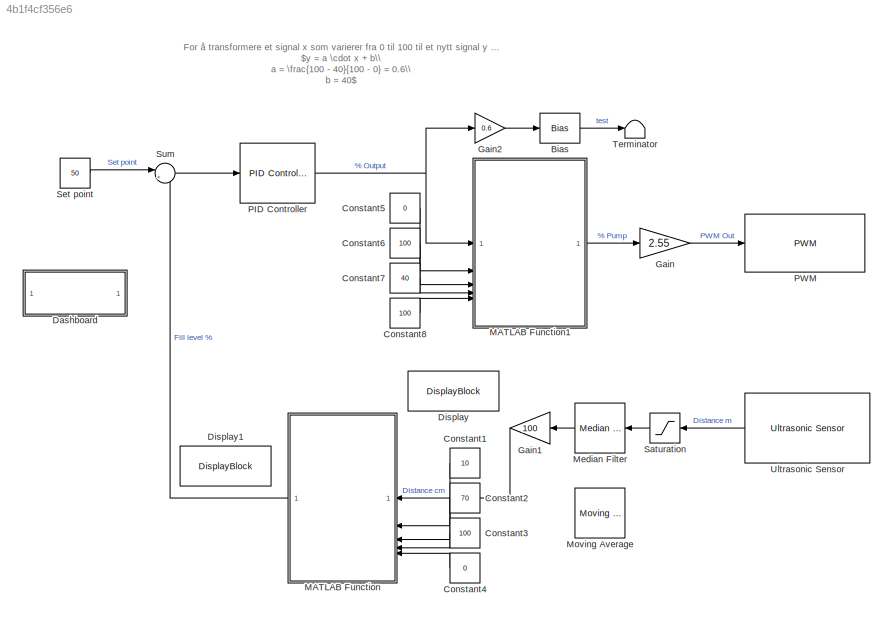
MODEL slx_4b1f4cf356e6
KIND model
CONFIG AbsTol = auto
CONFIG EnableMultiTasking = on
CONFIG FixedStep = auto
CONFIG MaxStep = auto
CONFIG MinStep = auto
CONFIG RelTol = 1e-3
CONFIG SampleTimeConstraint = Unconstrained
CONFIG SolverName = FixedStepAuto
CONFIG StartTime = 0.0
CONFIG StopTime = inf
BLOCK [Bias] Bias
  Bias = 40
  SaturateOnIntegerOverflow = off
BLOCK [Constant] Constant1
  Value = 10
BLOCK [Constant] Constant2
  Value = 70
BLOCK [Constant] Constant3
  Value = 100
BLOCK [Constant] Constant4
  Value = 0
BLOCK [Constant] Constant5
  Value = 0
BLOCK [Constant] Constant6
  Value = 100
BLOCK [Constant] Constant7
  Value = 40
BLOCK [Constant] Constant8
  Value = 100
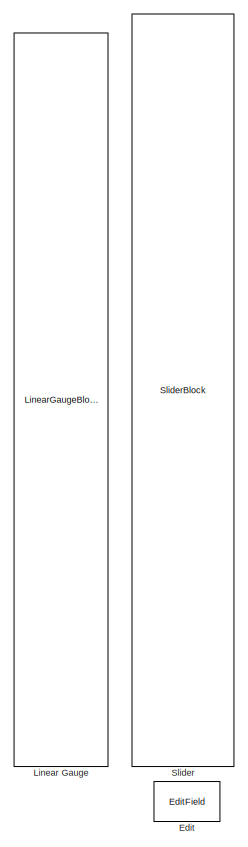
[diagram: Dashboard - part 1/2, right side, full height]
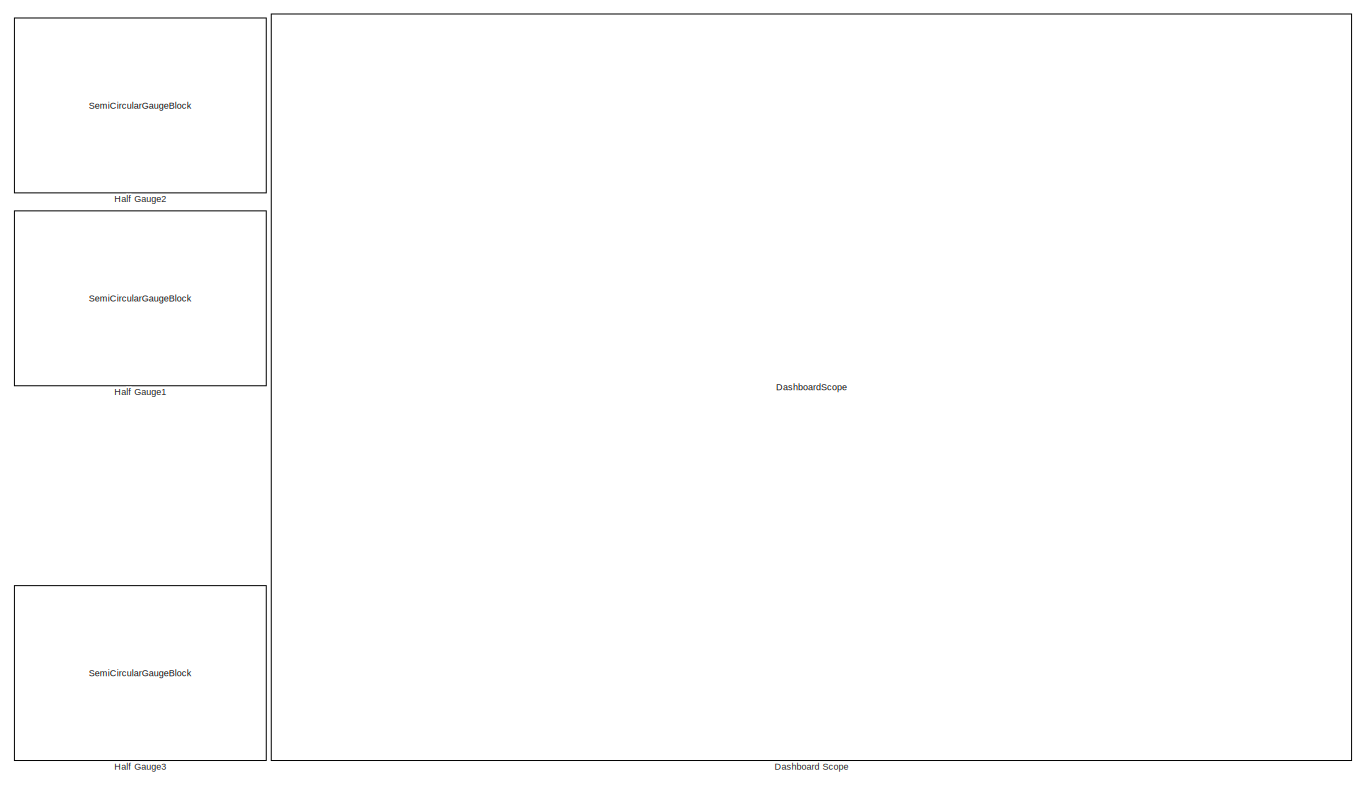
[diagram: Dashboard - part 2/2, most of the canvas]
BLOCK [SubSystem] Dashboard
BLOCK [DashboardScope] Dashboard/Dashboard Scope
  ScaleAtStop = off
  TimeSpan = 60
  UpdateMode = Scroll
  Ymax = 101
  Ymin = 0
BLOCK [EditField] Dashboard/Edit
  Alignment = Center
  LabelPosition = Hide
  ShowInitialText = on
BLOCK [SemiCircularGaugeBlock] Dashboard/Half Gauge1
BLOCK [SemiCircularGaugeBlock] Dashboard/Half Gauge2
BLOCK [SemiCircularGaugeBlock] Dashboard/Half Gauge3
BLOCK [LinearGaugeBlock] Dashboard/Linear Gauge
  NameLocation = right
  TickInterval = 5
BLOCK [SliderBlock] Dashboard/Slider
  NameLocation = left
  TickInterval = 5
BLOCK [DisplayBlock] Display
  FormatString = %d cm
  GridColor = [0.502, 0.502, 0.502]
  Transparency = 1
BLOCK [DisplayBlock] Display1
  FormatString = %d cm
  GridColor = [0.502, 0.502, 0.502]
  Transparency = 1
BLOCK [Gain] Gain
  Gain = 2.55
  RndMeth = Round
BLOCK [Gain] Gain1
  Gain = 100
  RndMeth = Round
BLOCK [Gain] Gain2
  Gain = 0.6
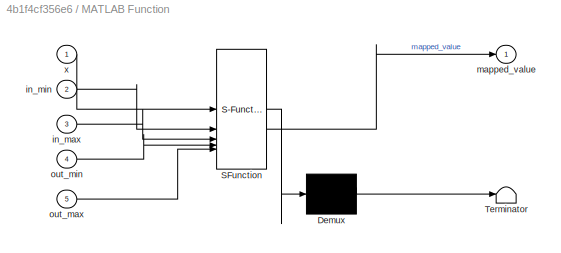
BLOCK [SubSystem] MATLAB Function
  ErrorFcn = Stateflow.Translate.translate
  PermitHierarchicalResolution = ExplicitOnly
  SFBlockType = MATLAB Function
  TreatAsAtomicUnit = on
BLOCK [Demux] MATLAB Function/ Demux 
  Outputs = 1
BLOCK [S-Function] MATLAB Function/ SFunction 
  EnableBusSupport = off
  FunctionName = sf_sfun
  PortCounts = [5 2]
  SFcnIsStateOwnerBlock = off
  SFunctionDeploymentMode = off
  Tag = Stateflow S-Function 2
BLOCK [Terminator] MATLAB Function/ Terminator 
BLOCK [Inport] MATLAB Function/in_max
  Port = 3
BLOCK [Inport] MATLAB Function/in_min
  Port = 2
BLOCK [Outport] MATLAB Function/mapped_value
BLOCK [Inport] MATLAB Function/out_max
  Port = 5
BLOCK [Inport] MATLAB Function/out_min
  Port = 4
BLOCK [Inport] MATLAB Function/x
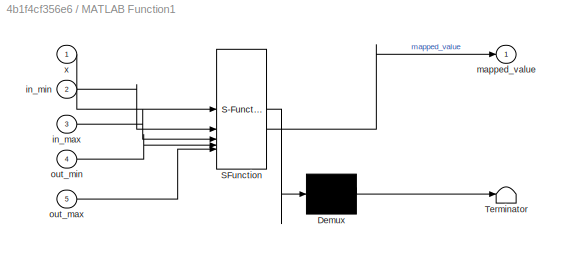
BLOCK [SubSystem] MATLAB Function1
  ErrorFcn = Stateflow.Translate.translate
  PermitHierarchicalResolution = ExplicitOnly
  SFBlockType = MATLAB Function
  TreatAsAtomicUnit = on
BLOCK [Demux] MATLAB Function1/ Demux 
  Outputs = 1
BLOCK [S-Function] MATLAB Function1/ SFunction 
  EnableBusSupport = off
  FunctionName = sf_sfun
  PortCounts = [5 2]
  SFcnIsStateOwnerBlock = off
  SFunctionDeploymentMode = off
  Tag = Stateflow S-Function 1
BLOCK [Terminator] MATLAB Function1/ Terminator 
BLOCK [Inport] MATLAB Function1/in_max
  Port = 3
BLOCK [Inport] MATLAB Function1/in_min
  Port = 2
BLOCK [Outport] MATLAB Function1/mapped_value
BLOCK [Inport] MATLAB Function1/out_max
  Port = 5
BLOCK [Inport] MATLAB Function1/out_min
  Port = 4
BLOCK [Inport] MATLAB Function1/x
BLOCK [Reference] Median Filter  REF=dspstat3/Median
Filter
  SourceBlock = dspstat3/Median\nFilter
  SourceType = dsp.simulink.MedianFilter
BLOCK [Reference] Moving Average  REF=dspstat3/Moving
Average
  Commented = on
  SourceBlock = dspstat3/Moving\nAverage
  SourceType = dsp.simulink.MovingAverage
BLOCK [Reference] PID Controller  REF=slpidlib/PID Controller
  LibrarySourceBlock = simulink/Continuous/PID Controller
  SourceBlock = slpidlib/PID Controller
  SourceType = PID 1dof
BLOCK [Reference] PWM  REF=arduinolib/PWM
  SourceBlock = arduinolib/PWM
  SourceType = Arduino PWM
BLOCK [Saturate] Saturation
  LowerLimit = 0.1
  RndMeth = Round
  UpperLimit = 0.7
BLOCK [Constant] Set point
  Value = 50
BLOCK [Sum] Sum
  Inputs = |+-
BLOCK [Terminator] Terminator
BLOCK [Reference] Ultrasonic Sensor  REF=arduinosensorlib/Ultrasonic Sensor
  SourceBlock = arduinosensorlib/Ultrasonic Sensor
  SourceType = Arduino Ultrasonic Sensor
ANNOTATION (root): For å transformere et signal x som varierer fra 0 til 100 til et nytt signal y som varierer fra 40 til 100. $y = a \cdot x + b\\ a = \frac{100 - 40}{100 - 0} = 0.6\\ b = 40$
LINE Bias:1 -> Terminator:1
LINE Constant1:1 -> MATLAB Function:2
LINE Constant2:1 -> MATLAB Function:3
LINE Constant3:1 -> MATLAB Function:4
LINE Constant4:1 -> MATLAB Function:5
LINE Constant5:1 -> MATLAB Function1:2
LINE Constant6:1 -> MATLAB Function1:3
LINE Constant7:1 -> MATLAB Function1:4
LINE Constant8:1 -> MATLAB Function1:5
LINE Gain1:1 -> MATLAB Function:1
LINE Gain2:1 -> Bias:1
LINE Gain:1 -> PWM:1
LINE MATLAB Function1:1 -> Gain:1
LINE MATLAB Function:1 -> Sum:2
LINE Median Filter:1 -> Gain1:1
NET PID Controller:1 -> Gain2:1, MATLAB Function1:1
LINE Saturation:1 -> Median Filter:1
LINE Set point:1 -> Sum:1
LINE Sum:1 -> PID Controller:1
LINE Ultrasonic Sensor:1 -> Saturation:1
note: NET lines group one-source signal fan-out (src -> all destinations, sorted); 1:1 wires keep LINE
CHART MATLAB Function1 states=1 transitions=1
  STATE_LABEL 'eML_blk_kernel()'
  STATE_LABEL "SCRIPT:\nfunction mapped_value = arduino_map(x, in_min, in_max, out_min, out_max)\n    % Replicates Arduino's map() function\n    mapped_value = ((x - in_min) * (out_max - out_min)) / (in_max - in_min) + out_min;\n    \n    % Clamp the result to [0, 100]\n    mapped_value = max(0, min(100, mapped_value));\n\n    % Round to 0.1 decimal places\n    mapped_value = round(mapped_value * 10) / 10;\nend"
CHART MATLAB Function states=1 transitions=1
  STATE_LABEL 'eML_blk_kernel()'
  STATE_LABEL "SCRIPT:\nfunction mapped_value = arduino_map(x, in_min, in_max, out_min, out_max)\n    % Replicates Arduino's map() function\n    mapped_value = ((x - in_min) * (out_max - out_min)) / (in_max - in_min) + out_min;\n    \n    % Clamp the result to [0, 100]\n    mapped_value = max(0, min(100, mapped_value));\n\n    % Round to 0.1 decimal places\n    mapped_value = round(mapped_value * 10) / 10;\nend"
CHART  states=0 transitions=0
CHART  states=0 transitions=0
